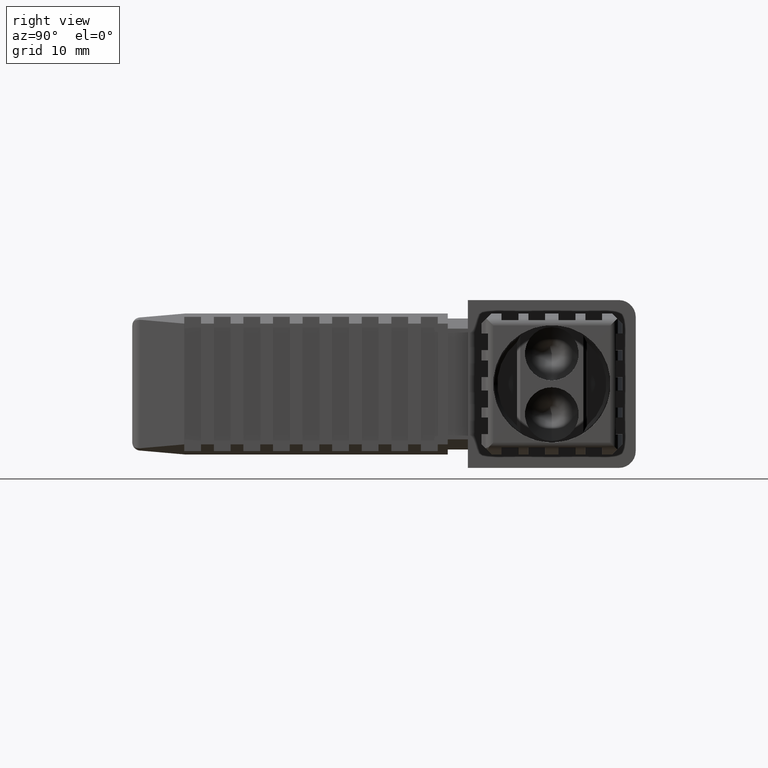
[diagram: clean part render]
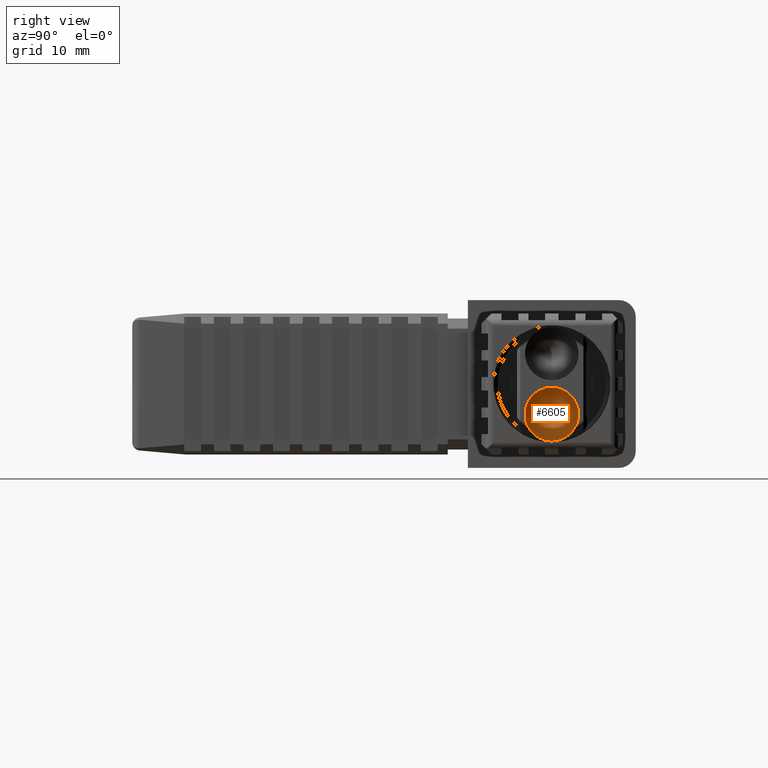
[diagram: same view with one face highlighted and labeled with its STEP entity id]
A machine part, right view. The second image highlights one B-rep face of the part: STEP entity #6605.
In plain terms, the highlighted conical surface has half-angle 59 deg.
Its self-contained STEP definition (entity closure, byte-faithful):
#2050=FACE_OUTER_BOUND('',#2418,.T.);
#2418=EDGE_LOOP('',(#4619));
#2798=CIRCLE('',#6981,4.);
#2949=VERTEX_POINT('',#9484);
#3606=EDGE_CURVE('',#2949,#2949,#2798,.T.);
#4619=ORIENTED_EDGE('',*,*,#3606,.T.);
#6596=CONICAL_SURFACE('',#6980,2.,59.);
#6605=ADVANCED_FACE('',(#2050),#6596,.F.);
#6980=AXIS2_PLACEMENT_3D('',#9483,#7557,#7558);
#6981=AXIS2_PLACEMENT_3D('',#9485,#7559,#7560);
#7557=DIRECTION('center_axis',(1.,8.88178419700125E-17,0.));
#7558=DIRECTION('ref_axis',(0.,0.,-1.));
#7559=DIRECTION('center_axis',(1.,8.88178419700125E-17,0.));
#7560=DIRECTION('ref_axis',(0.,0.,-1.));
#9483=CARTESIAN_POINT('Origin',(-11.2017212380551,2.33575636716176E-15,
-4.5));
#9484=CARTESIAN_POINT('',(-10.,2.44249065417534E-15,-8.5));
#9485=CARTESIAN_POINT('Origin',(-10.,2.44249065417534E-15,-4.5));